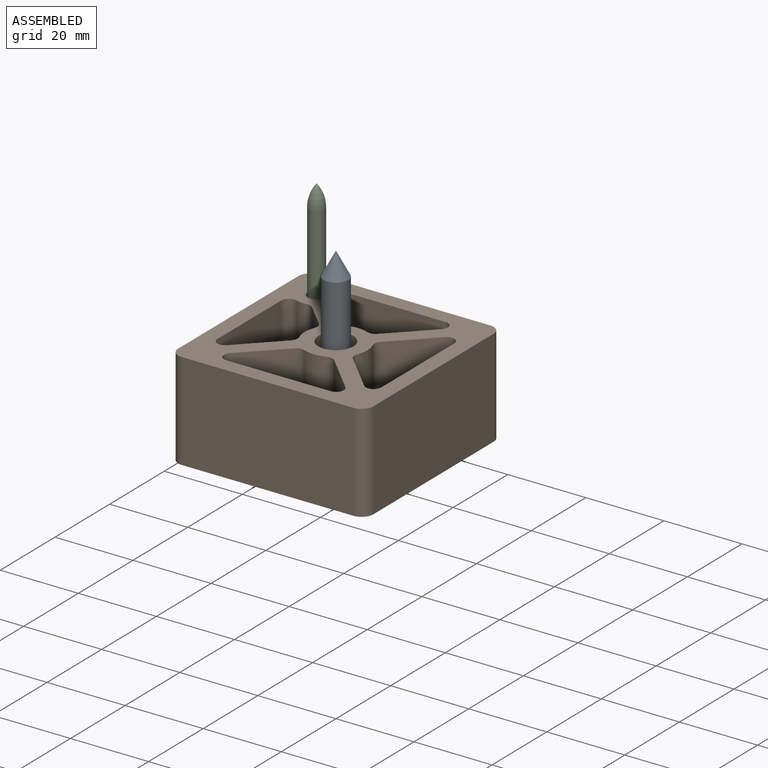
[diagram: assembled view]
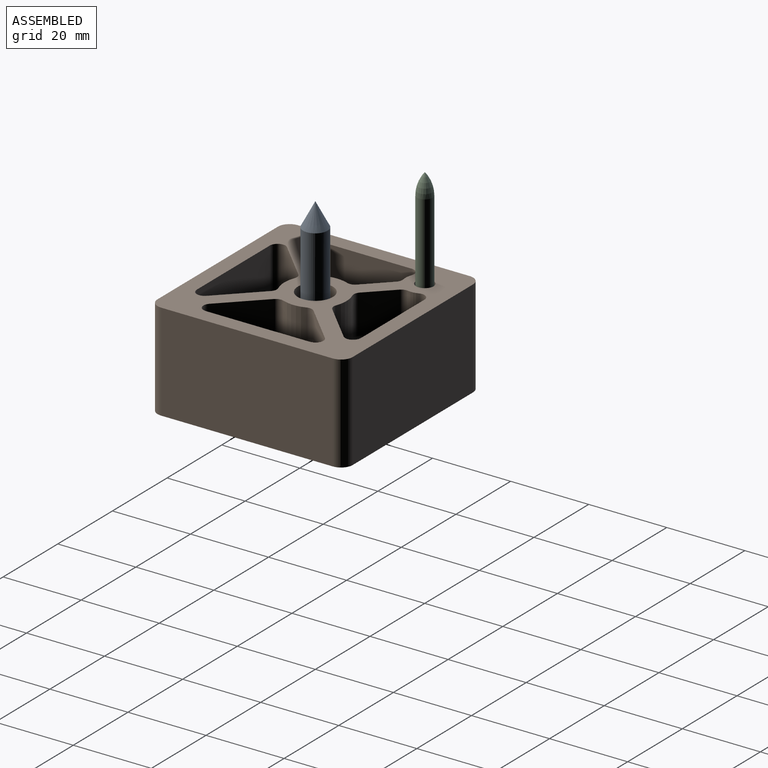
[diagram: assembled view, second angle]
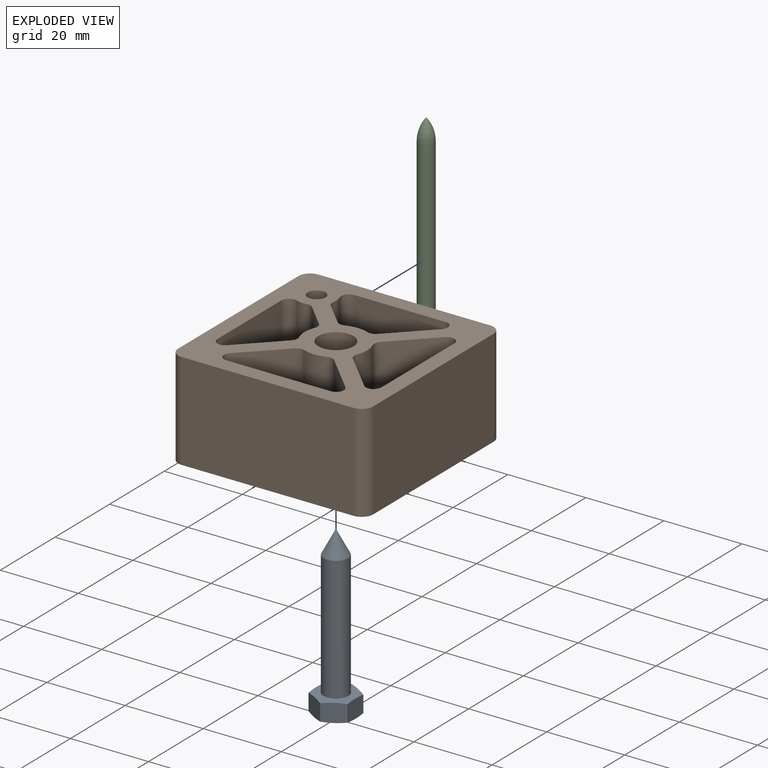
[diagram: exploded view]
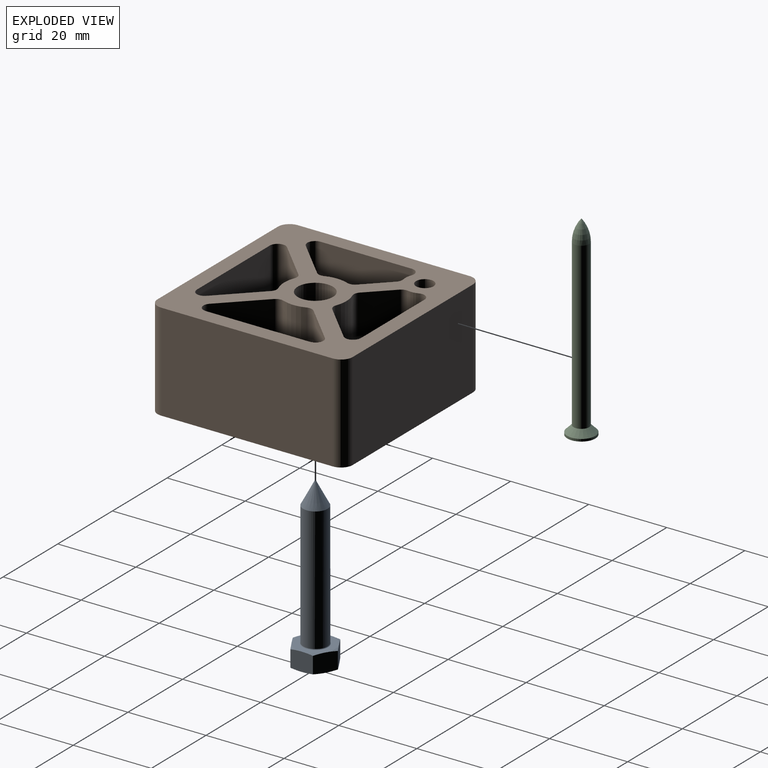
[diagram: exploded view, second angle]
ASSEMBLY  parts=3 mates=2
PART A: 23 faces, bbox 43.1x12x12 mm
  f0: cone r=6.5mm half-angle=75deg, axis (-1,0,0), area 2.2mm2, adj f6,f10,f15
  f1: cone r=6.5mm half-angle=75deg, axis (-1,0,0), area 2.2mm2, adj f6,f10,f11
  f2: cone r=6.5mm half-angle=75deg, axis (-1,0,0), area 2.2mm2, adj f6,f11,f12
  f3: cone r=6.5mm half-angle=75deg, axis (-1,0,0), area 2.2mm2, adj f6,f12,f13
  f4: cone r=6.5mm half-angle=75deg, axis (-1,0,0), area 2.2mm2, adj f6,f13,f14
  f5: cone r=6.5mm half-angle=75deg, axis (-1,0,0), area 2.2mm2, adj f6,f14,f15
  f6: plane 10x10mm, normal (1,0,0), area 45.6mm2, adj f0,f1,f2,f3,f4,f5,f7
  f7: torus R=3.4mm, axis (1,0,0), area 4.4mm2, adj f6,f9
  f8: cone r=3.15mm half-angle=27.7deg, axis (-1,0,0), area 67.1mm2, adj f9
  f9: cylinder r=3.15mm len=31.81mm, axis (1,0,0), area 629.5mm2, adj f7,f8
  f10: plane 6.21x5.13mm, normal (0,0,1), area 26.3mm2, adj f0,f1,f11,f15,f16,f17
  f11: plane 5.43x5.13mm, normal (0,0.87,0.5), area 26.3mm2, adj f1,f2,f10,f12,f16,f20
  f12: plane 5.43x5.13mm, normal (0,0.87,-0.5), area 26.3mm2, adj f2,f3,f11,f13,f19,f20
  f13: plane 6.21x5.13mm, normal (0,0,-1), area 26.3mm2, adj f3,f4,f12,f14,f18,f19
  f14: plane 5.43x5.13mm, normal (0,-0.87,-0.5), area 26.3mm2, adj f4,f5,f13,f15,f18,f22
  f15: plane 5.43x5.13mm, normal (0,-0.87,0.5), area 26.3mm2, adj f0,f5,f10,f14,f17,f22
  f16: cone r=5mm half-angle=75deg, axis (1,0,0), area 2.2mm2, adj f10,f11,f21
  f17: cone r=5mm half-angle=75deg, axis (1,0,0), area 2.2mm2, adj f10,f15,f21
  f18: cone r=5mm half-angle=75deg, axis (1,0,0), area 2.2mm2, adj f13,f14,f21
  f19: cone r=5mm half-angle=75deg, axis (1,0,0), area 2.2mm2, adj f12,f13,f21
  f20: cone r=5mm half-angle=75deg, axis (1,0,0), area 2.2mm2, adj f11,f12,f21
  f21: plane 10x10mm, normal (-1,0,0), area 78.5mm2, adj f16,f17,f18,f19,f20,f22
  f22: cone r=5mm half-angle=75deg, axis (1,0,0), area 2.2mm2, adj f14,f15,f21
PART B: 139 faces, bbox 50x50x25 mm
  f0: plane 18x9.69mm, normal (-0.71,-0.71,0), area 191.4mm2, adj f26,f46,f55,f61,f71,f104,f106
  f1: plane 18x9.69mm, normal (0.71,0.71,0), area 191.4mm2, adj f26,f44,f54,f62,f80,f111,f113
  f2: plane 18x9.69mm, normal (0.71,-0.71,0), area 191.4mm2, adj f26,f45,f53,f63,f75,f116,f117
  f3: plane 18x9.69mm, normal (-0.71,0.71,0), area 191.4mm2, adj f26,f42,f52,f64,f90,f119,f121
  f4: plane 18x5.96mm, normal (0.71,0.71,0), area 96.3mm2, adj f26,f43,f50,f65,f85,f124,f125
  f5: plane 18x5.96mm, normal (-0.71,-0.71,0), area 96.3mm2, adj f26,f40,f49,f58,f100,f127,f129
  f6: plane 18x9.69mm, normal (-0.71,0.71,0), area 191.4mm2, adj f26,f41,f57,f59,f95,f132,f133
  f7: plane 18x9.69mm, normal (0.71,-0.71,0), area 191.4mm2, adj f26,f47,f56,f60,f68,f107,f109
  f8: plane 44x25mm, normal (1,0,0), area 1100mm2, adj f9,f25,f26,f27
  f9: cylinder r=3mm len=25mm, axis (0,0,-1), area 117.8mm2, adj f8,f10,f26,f27
  f10: plane 44x25mm, normal (0,1,0), area 1100mm2, adj f9,f11,f26,f27
  f11: cylinder r=3mm len=25mm, axis (0,0,-1), area 117.8mm2, adj f10,f12,f26,f27
  f12: plane 44x25mm, normal (-1,0,0), area 1100mm2, adj f11,f13,f26,f27
  f13: cylinder r=3mm len=25mm, axis (0,0,-1), area 117.8mm2, adj f12,f14,f26,f27
  f14: plane 44x25mm, normal (0,-1,0), area 1100mm2, adj f13,f25,f26,f27
  f15: cylinder r=8mm len=10mm, axis (0,0,-1), area 59.8mm2, adj f26,f60,f61,f103
  f16: plane 26.69x18mm, normal (0,1,0), area 480.4mm2, adj f26,f55,f56,f67
  f17: cylinder r=8mm len=10mm, axis (0,0,-1), area 59.8mm2, adj f26,f62,f63,f112
  f18: cylinder r=8mm len=10mm, axis (0,0,-1), area 59.8mm2, adj f26,f64,f65,f120
  f19: cylinder r=5mm len=18mm, axis (0,0,-1), area 48.8mm2, adj f26,f50,f51,f82
  f20: cylinder r=8mm len=10mm, axis (0,0,-1), area 59.8mm2, adj f26,f58,f59,f128
  f21: plane 23.3x18mm, normal (1,0,0), area 419.5mm2, adj f26,f48,f57,f92
  f22: plane 26.69x18mm, normal (-1,0,0), area 480.4mm2, adj f26,f53,f54,f76
  f23: plane 23.3x18mm, normal (0,-1,0), area 419.5mm2, adj f26,f51,f52,f86
  f24: cylinder r=5mm len=18mm, axis (0,0,-1), area 48.8mm2, adj f26,f48,f49,f96
  f25: cylinder r=3mm len=25mm, axis (0,0,-1), area 117.8mm2, adj f8,f14,f26,f27
  f26: plane 50x50mm, normal (0,0,1), area 1258mm2, adj f0,f1,f2,f3,f4,f5,f6,f7
  f27: plane 50x50mm, normal (0,0,-1), area 2115.1mm2, adj f8,f9,f10,f11,f12,f13,f14,f25
  f28: plane 23.3x4.49mm, normal (0,0,1), area 62.8mm2, adj f92,f95,f96,f99,f100
  f29: plane 23.3x4.49mm, normal (0,0,1), area 62.8mm2, adj f82,f85,f86,f89,f90
  f30: plane 26.69x4.49mm, normal (0,0,1), area 69.8mm2, adj f75,f76,f79,f80
  f31: plane 26.69x4.49mm, normal (0,0,1), area 69.8mm2, adj f67,f68,f71,f72
  f32: cylinder r=15mm len=15.63mm, axis (0,0,-1), area 65.7mm2, adj f46,f47,f72,f108
  f33: plane 11.84x3.69mm, normal (0,0,1), area 29.7mm2, adj f103,f104,f107,f108
  f34: cylinder r=15mm len=15.63mm, axis (0,0,-1), area 65.7mm2, adj f44,f45,f79,f115
  f35: plane 11.84x3.69mm, normal (0,0,1), area 29.7mm2, adj f111,f112,f115,f116
  f36: cylinder r=15mm len=15.63mm, axis (0,0,-1), area 65.7mm2, adj f42,f43,f89,f123
  f37: plane 11.84x3.69mm, normal (0,0,1), area 29.7mm2, adj f119,f120,f123,f124
  f38: plane 11.84x3.69mm, normal (0,0,1), area 29.7mm2, adj f127,f128,f131,f132
  f39: cylinder r=15mm len=15.63mm, axis (0,0,-1), area 65.7mm2, adj f40,f41,f99,f131
  f40: cylinder r=2mm len=4mm, axis (0,0,-1), area 10.7mm2, adj f5,f39,f101,f129
  f41: cylinder r=2mm len=4mm, axis (0,0,-1), area 10.7mm2, adj f6,f39,f97,f133
  f42: cylinder r=2mm len=4mm, axis (0,0,-1), area 10.7mm2, adj f3,f36,f91,f121
  f43: cylinder r=2mm len=4mm, axis (0,0,-1), area 10.7mm2, adj f4,f36,f87,f125
  f44: cylinder r=2mm len=4mm, axis (0,0,-1), area 10.7mm2, adj f1,f34,f81,f113
  f45: cylinder r=2mm len=4mm, axis (0,0,-1), area 10.7mm2, adj f2,f34,f77,f117
  f46: cylinder r=2mm len=4mm, axis (0,0,-1), area 10.7mm2, adj f0,f32,f73,f106
  f47: cylinder r=2mm len=4mm, axis (0,0,-1), area 10.7mm2, adj f7,f32,f70,f109
  f48: cylinder r=2mm len=18mm, axis (0,0,-1), area 69.7mm2, adj f21,f24,f26,f94
  f49: cylinder r=2mm len=18mm, axis (0,0,-1), area 34.7mm2, adj f5,f24,f26,f98
  f50: cylinder r=2mm len=18mm, axis (0,0,-1), area 34.7mm2, adj f4,f19,f26,f83
  f51: cylinder r=2mm len=18mm, axis (0,0,-1), area 69.7mm2, adj f19,f23,f26,f84
  f52: cylinder r=2mm len=18mm, axis (0,0,-1), area 84.8mm2, adj f3,f23,f26,f88
  f53: cylinder r=2mm len=18mm, axis (0,0,1), area 84.8mm2, adj f2,f22,f26,f74
  f54: cylinder r=2mm len=18mm, axis (0,0,-1), area 84.8mm2, adj f1,f22,f26,f78
  f55: cylinder r=2mm len=18mm, axis (0,0,-1), area 84.8mm2, adj f0,f16,f26,f69
  f56: cylinder r=2mm len=18mm, axis (0,0,-1), area 84.8mm2, adj f7,f16,f26,f66
  f57: cylinder r=2mm len=18mm, axis (0,0,1), area 84.8mm2, adj f6,f21,f26,f93
  f58: cylinder r=2mm len=10mm, axis (0,0,-1), area 23.2mm2, adj f5,f20,f26,f126
  f59: cylinder r=2mm len=10mm, axis (0,0,-1), area 23.2mm2, adj f6,f20,f26,f130
  f60: cylinder r=2mm len=10mm, axis (0,0,-1), area 23.2mm2, adj f7,f15,f26,f105
  f61: cylinder r=2mm len=10mm, axis (0,0,-1), area 23.2mm2, adj f0,f15,f26,f102
  f62: cylinder r=2mm len=10mm, axis (0,0,-1), area 23.2mm2, adj f1,f17,f26,f110
  f63: cylinder r=2mm len=10mm, axis (0,0,-1), area 23.2mm2, adj f2,f17,f26,f114
  f64: cylinder r=2mm len=10mm, axis (0,0,-1), area 23.2mm2, adj f3,f18,f26,f118
  f65: cylinder r=2mm len=10mm, axis (0,0,-1), area 23.2mm2, adj f4,f18,f26,f122
  f66: sphere r=2mm, area 9.4mm2, adj f56,f67,f68
  f67: cylinder r=2mm len=26.69mm, axis (-1,0,0), area 83.8mm2, adj f16,f31,f66,f69
  f68: cylinder r=2mm len=5.9mm, axis (0.71,0.71,0), area 19.9mm2, adj f7,f31,f66,f70
  f69: sphere r=2mm, area 9.4mm2, adj f55,f67,f71
  f70: sphere r=2mm, area 5.3mm2, adj f47,f68,f72
  f71: cylinder r=2mm len=5.9mm, axis (0.71,-0.71,0), area 19.9mm2, adj f0,f31,f69,f73
  f72: torus R=17mm, axis (0,0,1), area 54.1mm2, adj f31,f32,f70,f73
  f73: sphere r=2mm, area 5.3mm2, adj f46,f71,f72
  f74: sphere r=2mm, area 9.4mm2, adj f53,f75,f76
  f75: cylinder r=2mm len=5.9mm, axis (0.71,0.71,0), area 19.9mm2, adj f2,f30,f74,f77
  f76: cylinder r=2mm len=26.69mm, axis (0,-1,0), area 83.8mm2, adj f22,f30,f74,f78
  f77: sphere r=2mm, area 5.3mm2, adj f45,f75,f79
  f78: sphere r=2mm, area 9.4mm2, adj f54,f76,f80
  f79: torus R=17mm, axis (0,0,1), area 54.1mm2, adj f30,f34,f77,f81
  f80: cylinder r=2mm len=5.9mm, axis (-0.71,0.71,0), area 19.9mm2, adj f1,f30,f78,f81
  f81: sphere r=2mm, area 5.3mm2, adj f44,f79,f80
  f82: torus R=7mm, axis (0,0,1), area 9.8mm2, adj f19,f29,f83,f84
  f83: sphere r=2mm, area 3.9mm2, adj f50,f82,f85
  f84: sphere r=2mm, area 7.7mm2, adj f51,f82,f86
  f85: cylinder r=2mm len=2.17mm, axis (-0.71,0.71,0), area 3.4mm2, adj f4,f29,f83,f87
  f86: cylinder r=2mm len=23.3mm, axis (1,0,0), area 73.2mm2, adj f23,f29,f84,f88
  f87: sphere r=2mm, area 5.3mm2, adj f43,f85,f89
  f88: sphere r=2mm, area 9.4mm2, adj f52,f86,f90
  f89: torus R=17mm, axis (0,0,1), area 54.1mm2, adj f29,f36,f87,f91
  f90: cylinder r=2mm len=5.9mm, axis (-0.71,-0.71,0), area 19.9mm2, adj f3,f29,f88,f91
  f91: sphere r=2mm, area 5.3mm2, adj f42,f89,f90
  f92: cylinder r=2mm len=23.3mm, axis (0,1,0), area 73.2mm2, adj f21,f28,f93,f94
  f93: sphere r=2mm, area 9.4mm2, adj f57,f92,f95
  f94: sphere r=2mm, area 7.7mm2, adj f48,f92,f96
  f95: cylinder r=2mm len=5.9mm, axis (-0.71,-0.71,0), area 19.9mm2, adj f6,f28,f93,f97
  f96: torus R=7mm, axis (0,0,1), area 9.8mm2, adj f24,f28,f94,f98
  f97: sphere r=2mm, area 5.3mm2, adj f41,f95,f99
  f98: sphere r=2mm, area 3.9mm2, adj f49,f96,f100
  f99: torus R=17mm, axis (0,0,1), area 54.1mm2, adj f28,f39,f97,f101
  f100: cylinder r=2mm len=2.17mm, axis (0.71,-0.71,0), area 3.4mm2, adj f5,f28,f98,f101
  f101: sphere r=2mm, area 5.3mm2, adj f40,f99,f100
  f102: sphere r=2mm, area 4.6mm2, adj f61,f103,f104
  f103: torus R=10mm, axis (0,0,1), area 20.5mm2, adj f15,f33,f102,f105
  f104: cylinder r=2mm len=3.68mm, axis (0.71,-0.71,0), area 10.1mm2, adj f0,f33,f102,f106
  f105: sphere r=2mm, area 4.6mm2, adj f60,f103,f107
  f106: bspline ~4.86x4.79mm, area 12.8mm2, adj f0,f46,f104,f108
  f107: cylinder r=2mm len=3.68mm, axis (0.71,0.71,0), area 10.1mm2, adj f7,f33,f105,f109
  f108: torus R=13mm, axis (0,0,1), area 47mm2, adj f32,f33,f106,f109
  f109: bspline ~4.87x4.52mm, area 12.8mm2, adj f7,f47,f107,f108
  f110: sphere r=2mm, area 4.6mm2, adj f62,f111,f112
  f111: cylinder r=2mm len=3.68mm, axis (-0.71,0.71,0), area 10.1mm2, adj f1,f35,f110,f113
  f112: torus R=10mm, axis (0,0,1), area 20.5mm2, adj f17,f35,f110,f114
  f113: bspline ~4.87x4.52mm, area 12.8mm2, adj f1,f44,f111,f115
  f114: sphere r=2mm, area 4.6mm2, adj f63,f112,f116
  f115: torus R=13mm, axis (0,0,1), area 47mm2, adj f34,f35,f113,f117
  f116: cylinder r=2mm len=3.68mm, axis (0.71,0.71,0), area 10.1mm2, adj f2,f35,f114,f117
  f117: bspline ~4.86x4.79mm, area 12.8mm2, adj f2,f45,f115,f116
  f118: sphere r=2mm, area 4.6mm2, adj f64,f119,f120
  f119: cylinder r=2mm len=3.68mm, axis (-0.71,-0.71,0), area 10.1mm2, adj f3,f37,f118,f121
  f120: torus R=10mm, axis (0,0,1), area 20.5mm2, adj f18,f37,f118,f122
  f121: bspline ~4.87x4.52mm, area 12.8mm2, adj f3,f42,f119,f123
  f122: sphere r=2mm, area 4.6mm2, adj f65,f120,f124
  f123: torus R=13mm, axis (0,0,1), area 47mm2, adj f36,f37,f121,f125
  f124: cylinder r=2mm len=3.68mm, axis (-0.71,0.71,0), area 10.1mm2, adj f4,f37,f122,f125
  f125: bspline ~4.79x4.41mm, area 12.8mm2, adj f4,f43,f123,f124
  f126: sphere r=2mm, area 4.6mm2, adj f58,f127,f128
  f127: cylinder r=2mm len=3.68mm, axis (0.71,-0.71,0), area 10.1mm2, adj f5,f38,f126,f129
  f128: torus R=10mm, axis (0,0,1), area 20.5mm2, adj f20,f38,f126,f130
  f129: bspline ~4.87x4.52mm, area 12.8mm2, adj f5,f40,f127,f131
  f130: sphere r=2mm, area 4.6mm2, adj f59,f128,f132
  f131: torus R=13mm, axis (0,0,1), area 47mm2, adj f38,f39,f129,f133
  f132: cylinder r=2mm len=3.68mm, axis (-0.71,-0.71,0), area 10.1mm2, adj f6,f38,f130,f133
  f133: bspline ~4.79x4.41mm, area 12.8mm2, adj f6,f41,f131,f132
  f134: cylinder r=4.5mm len=17mm, axis (0,0,-1), area 480.7mm2, adj f26,f135
  f135: plane 20x20mm, normal (0,0,-1), area 250.5mm2, adj f134,f136
  f136: cylinder r=10mm len=20mm, axis (0,0,-1), area 502.7mm2, adj f27,f135
  f137: cylinder r=2.25mm len=22.77mm, axis (0,0,-1), area 321.9mm2, adj f26,f138
  f138: cone r=2.25mm half-angle=45deg, axis (0,0,-1), area 66.7mm2, adj f27,f137
PART C: 26 faces, bbox 44.6x7.2x7.2 mm
  f0: plane 7.2x7.2mm, normal (-1,0,0), area 32.4mm2, adj f1,f2,f3,f4,f5,f6,f7,f8
  f1: plane 1.24x0.93mm, normal (0,-1,0), area 1.2mm2, adj f0,f13,f17,f19
  f2: plane 1.24x0.93mm, normal (0,1,0), area 1.2mm2, adj f0,f13,f17,f24
  f3: plane 1.24x0.93mm, normal (0,0,-1), area 1.2mm2, adj f0,f14,f17,f25
  f4: plane 1.24x0.93mm, normal (0,0,1), area 1.2mm2, adj f0,f14,f17,f23
  f5: plane 1.24x0.93mm, normal (0,1,0), area 1.2mm2, adj f0,f15,f17,f22
  f6: plane 1.24x0.93mm, normal (0,-1,0), area 1.2mm2, adj f0,f15,f17,f21
  f7: plane 1.24x0.93mm, normal (0,0,1), area 1.2mm2, adj f0,f16,f17,f20
  f8: plane 1.24x0.93mm, normal (0,0,-1), area 1.2mm2, adj f0,f16,f17,f18
  f9: cylinder r=3.6mm len=7.2mm, axis (1,0,0), area 13.6mm2, adj f0,f10
  f10: cone r=3.6mm half-angle=45deg, axis (-1,0,0), area 39.8mm2, adj f9,f11
  f11: cylinder r=2mm len=42.4mm, axis (1,0,0), area 532.8mm2, adj f10,f12
  f12: revolved ~4x2mm, area 0mm2, adj f11
  f13: cylinder r=2.1mm len=0.93mm, axis (-1,0,0), area 0.8mm2, adj f0,f1,f2,f17
  f14: cylinder r=2.1mm len=0.93mm, axis (-1,0,0), area 0.8mm2, adj f0,f3,f4,f17
  f15: cylinder r=2.1mm len=0.93mm, axis (-1,0,0), area 0.8mm2, adj f0,f5,f6,f17
  f16: cylinder r=2.1mm len=0.93mm, axis (-1,0,0), area 0.8mm2, adj f0,f7,f8,f17
  f17: plane 4.2x4.2mm, normal (-1,0,0), area 8.3mm2, adj f1,f2,f3,f4,f5,f6,f7,f8
  f18: plane 1.26x0.93mm, normal (0,-0.82,0.57), area 1.4mm2, adj f0,f8,f17,f19
  f19: plane 1.26x0.93mm, normal (0,0.57,-0.82), area 1.4mm2, adj f0,f1,f17,f18
  f20: plane 1.26x0.93mm, normal (0,-0.82,-0.57), area 1.4mm2, adj f0,f7,f17,f21
  f21: plane 1.26x0.93mm, normal (0,0.57,0.82), area 1.4mm2, adj f0,f6,f17,f20
  f22: plane 1.26x0.93mm, normal (0,-0.57,0.82), area 1.4mm2, adj f0,f5,f17,f23
  f23: plane 1.26x0.93mm, normal (0,0.82,-0.57), area 1.4mm2, adj f0,f4,f17,f22
  f24: plane 1.26x0.93mm, normal (0,-0.57,-0.82), area 1.4mm2, adj f0,f2,f17,f25
  f25: plane 1.26x0.93mm, normal (0,0.82,0.57), area 1.4mm2, adj f0,f3,f17,f24
PLACE A rot(axis=(0,-1,0),90deg) t=(0,0,8)mm
PLACE B at identity
PLACE C rot(axis=(0.58,-0.58,0.58),120deg) t=(-16.5,16.5,0.83)mm
MATE fastened A.f7 <-> B.f134  axis (0,0,1) through (0,0,8)mm
MATE fastened C.f9 <-> B.f19  axis (0,0,-1) through (-16.5,16.5,2.23)mm
